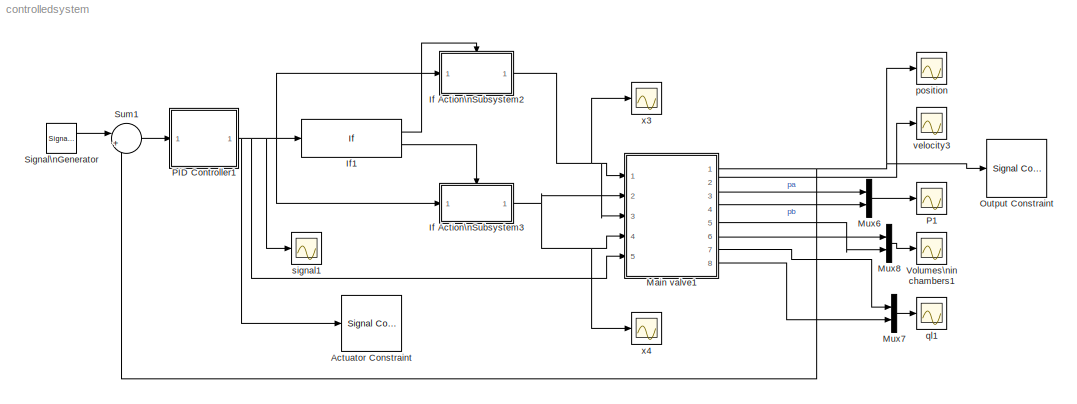
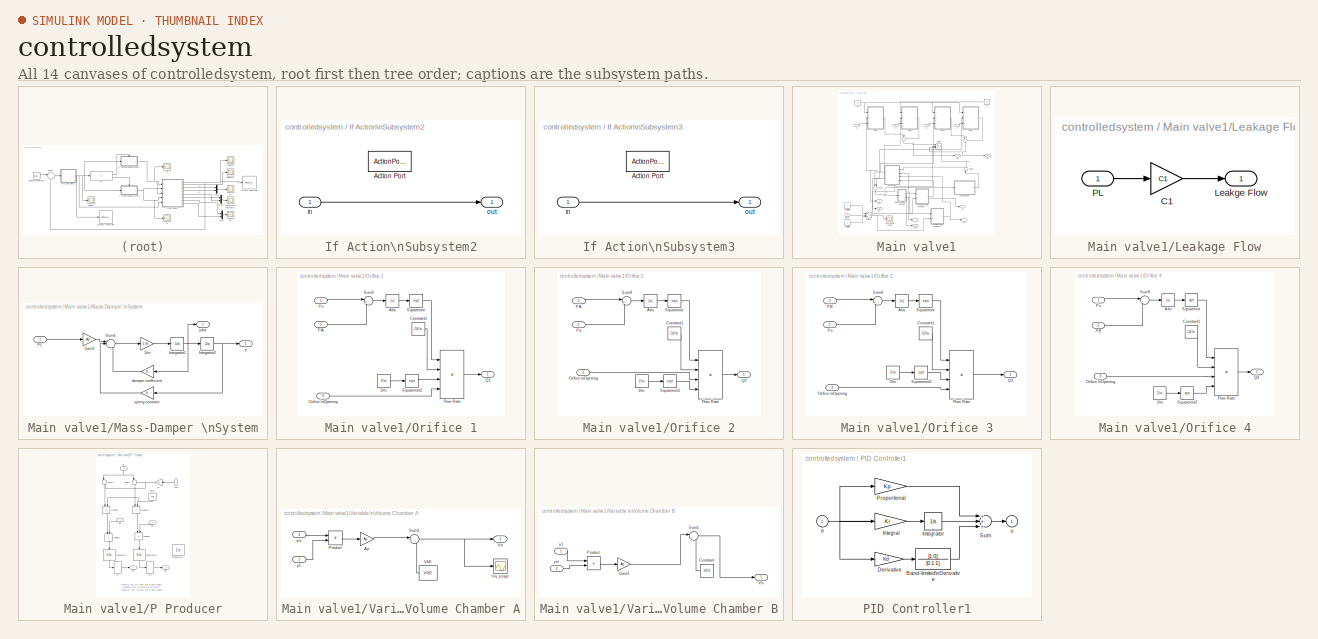
[diagram: thumbnail index - all 14 canvases of the model, root first then tree order]
MODEL controlledsystem
KIND model
CONFIG InitFcn = clear all\nps=1e6;\npe=1;\nAp=5e-4;\nV0=2e-3;\nVdead=10e-6;\nVa0=Vdead;\nVb0=V0-Va0;\nbeta=1.71e9;\nCd=0.65;\nw=25e-3;\nro=825.6;\nm=1;\nk=3e4;\nb=6e2;\nC1=1.5e-12;\nKi=14e-4;\nKd=1.2000e-007;\nKp=40e-2;
BLOCK [Reference] Actuator Constraint  REF=srolib/Signal Constraint  (lib defined in mdl_d992e5ea460a)
  DialogPosition = [0.0578125 0.1943359375 0.403125 0.2890625]
  FunctionWithSeparateData = off
  LogID = SRO_DataLog_1
  Ports = [1]
  RTWMemSecDataConstants = Inherit from model
  RTWMemSecDataInternal = Inherit from model
  RTWMemSecDataParameters = Inherit from model
  RTWMemSecFuncExecute = Inherit from model
  RTWMemSecFuncInitTerm = Inherit from model
  SID = 1
  SaveAs = controlledsystem_optim.mat
  SaveIn = MAT file
  ShowPortLabels = FromPortIcon
  SourceBlock = srolib/Signal Constraint
  SourceProductBaseCode = SO
  SourceProductName = Simulink Design Optimization
  SourceType = Signal Constraint
  SystemSampleTime = -1
BLOCK [SubSystem] If Action\nSubsystem2
  Ports = [1, 1, 0, 0, 0, 0, 0, 1]
  RequestExecContextInheritance = off
  SID = 2
  TreatAsAtomicUnit = on
BLOCK [ActionPort] If Action\nSubsystem2/Action Port
  ActionPortLabel = if { }
  SID = 4
BLOCK [Inport] If Action\nSubsystem2/in
  IconDisplay = Port number
  SID = 3
BLOCK [Outport] If Action\nSubsystem2/out
  IconDisplay = Port number
  SID = 5
BLOCK [SubSystem] If Action\nSubsystem3
  Ports = [1, 1, 0, 0, 0, 0, 0, 1]
  RequestExecContextInheritance = off
  SID = 6
  TreatAsAtomicUnit = on
BLOCK [ActionPort] If Action\nSubsystem3/Action Port
  ActionPortLabel = else { }
  SID = 8
BLOCK [Inport] If Action\nSubsystem3/in
  IconDisplay = Port number
  SID = 7
BLOCK [Outport] If Action\nSubsystem3/out
  IconDisplay = Port number
  SID = 9
BLOCK [If] If1
  Ports = [1, 2]
  SID = 10
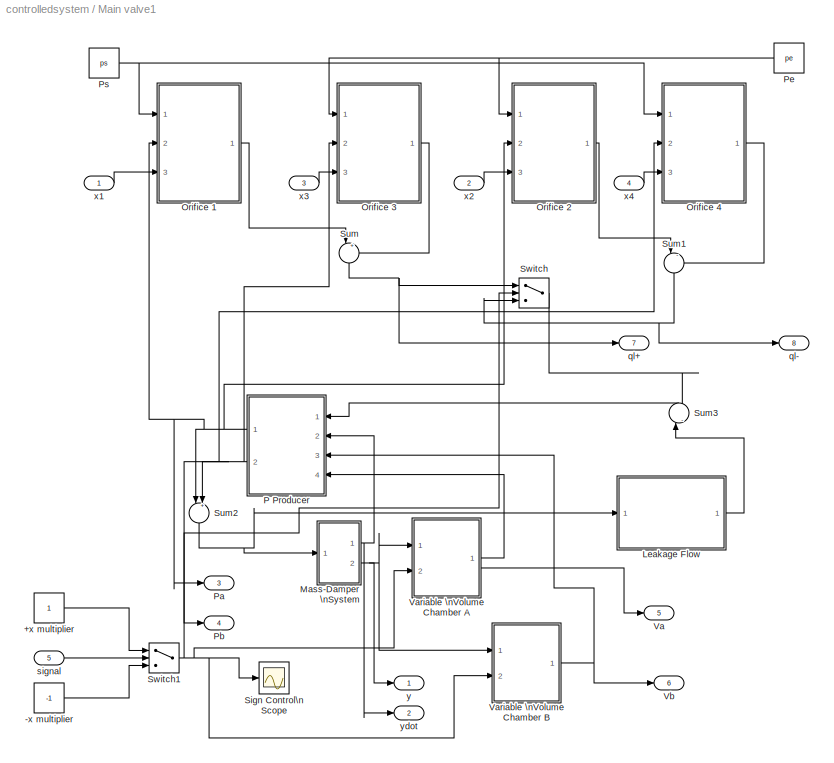
BLOCK [SubSystem] Main valve1
  Ports = [5, 8]
  RequestExecContextInheritance = off
  SID = 11
BLOCK [Constant] Main valve1/+x multiplier
  SID = 17
BLOCK [Constant] Main valve1/-x multiplier
  SID = 18
  Value = -1
BLOCK [SubSystem] Main valve1/Leakage Flow
  Ports = [1, 1]
  RequestExecContextInheritance = off
  SID = 19
BLOCK [Gain] Main valve1/Leakage Flow/C1
  Gain = C1
  OutDataTypeStr = Inherit: Inherit via internal rule
  ParamDataTypeStr = Inherit: Inherit via internal rule
  SID = 21
  SaturateOnIntegerOverflow = off
BLOCK [Outport] Main valve1/Leakage Flow/Leakge Flow
  IconDisplay = Port number
  SID = 22
BLOCK [Inport] Main valve1/Leakage Flow/PL
  IconDisplay = Port number
  SID = 20
BLOCK [SubSystem] Main valve1/Mass-Damper \nSystem
  Ports = [1, 2]
  RequestExecContextInheritance = off
  SID = 23
BLOCK [Gain] Main valve1/Mass-Damper \nSystem/1//m
  Gain = 1/m
  OutDataTypeStr = Inherit: Inherit via internal rule
  ParamDataTypeStr = Inherit: Inherit via internal rule
  SID = 25
  SaturateOnIntegerOverflow = off
BLOCK [Gain] Main valve1/Mass-Damper \nSystem/Gain1
  Gain = Ap
  OutDataTypeStr = Inherit: Inherit via internal rule
  ParamDataTypeStr = Inherit: Inherit via internal rule
  SID = 26
  SaturateOnIntegerOverflow = off
BLOCK [Integrator] Main valve1/Mass-Damper \nSystem/Integrator1
  Ports = [1, 1]
  SID = 27
BLOCK [Integrator] Main valve1/Mass-Damper \nSystem/Integrator2
  Ports = [1, 1]
  SID = 28
BLOCK [Inport] Main valve1/Mass-Damper \nSystem/PL
  IconDisplay = Port number
  SID = 24
BLOCK [Sum] Main valve1/Mass-Damper \nSystem/Sum4
  IconShape = round
  InputSameDT = off
  Inputs = |+--
  OutDataTypeStr = Inherit: Inherit via internal rule
  Ports = [3, 1]
  SID = 29
  SaturateOnIntegerOverflow = off
BLOCK [Gain] Main valve1/Mass-Damper \nSystem/damper coefficient
  Gain = b
  OutDataTypeStr = Inherit: Inherit via internal rule
  ParamDataTypeStr = Inherit: Inherit via internal rule
  SID = 30
  SaturateOnIntegerOverflow = off
BLOCK [Gain] Main valve1/Mass-Damper \nSystem/spring constant
  Gain = k
  OutDataTypeStr = Inherit: Inherit via internal rule
  ParamDataTypeStr = Inherit: Inherit via internal rule
  SID = 31
  SaturateOnIntegerOverflow = off
BLOCK [Outport] Main valve1/Mass-Damper \nSystem/y
  IconDisplay = Port number
  Port = 2
  SID = 33
BLOCK [Outport] Main valve1/Mass-Damper \nSystem/ydot
  IconDisplay = Port number
  SID = 32
BLOCK [SubSystem] Main valve1/Orifice 1
  Ports = [3, 1]
  RequestExecContextInheritance = off
  SID = 34
BLOCK [Constant] Main valve1/Orifice 1/2//ro
  SID = 38
  Value = 2/ro
BLOCK [Abs] Main valve1/Orifice 1/Abs
  SID = 39
  SaturateOnIntegerOverflow = off
BLOCK [Constant] Main valve1/Orifice 1/Constant1
  SID = 40
  Value = Cd*w
BLOCK [Product] Main valve1/Orifice 1/Flow Rate
  InputSameDT = off
  Inputs = 4
  OutDataTypeStr = Inherit: Inherit via internal rule
  Ports = [4, 1]
  SID = 41
  SaturateOnIntegerOverflow = off
BLOCK [Inport] Main valve1/Orifice 1/Orifice \nOpening
  IconDisplay = Port number
  Port = 3
  SID = 37
BLOCK [Inport] Main valve1/Orifice 1/PA
  IconDisplay = Port number
  Port = 2
  SID = 36
BLOCK [Inport] Main valve1/Orifice 1/Ps
  IconDisplay = Port number
  SID = 35
BLOCK [Outport] Main valve1/Orifice 1/Q1
  IconDisplay = Port number
  SID = 45
BLOCK [Math] Main valve1/Orifice 1/Squareroot
  Operator = sqrt
  Ports = [1, 1]
  SID = 42
BLOCK [Math] Main valve1/Orifice 1/Squareroot2
  Operator = sqrt
  Ports = [1, 1]
  SID = 43
BLOCK [Sum] Main valve1/Orifice 1/Sum9
  IconShape = round
  InputSameDT = off
  Inputs = |+-
  OutDataTypeStr = Inherit: Inherit via internal rule
  Ports = [2, 1]
  SID = 44
  SaturateOnIntegerOverflow = off
BLOCK [SubSystem] Main valve1/Orifice 2
  Ports = [3, 1]
  RequestExecContextInheritance = off
  SID = 46
BLOCK [Constant] Main valve1/Orifice 2/2//ro
  SID = 50
  Value = 2/ro
BLOCK [Abs] Main valve1/Orifice 2/Abs
  SID = 51
  SaturateOnIntegerOverflow = off
BLOCK [Constant] Main valve1/Orifice 2/Constant1
  SID = 52
  Value = Cd*w
BLOCK [Product] Main valve1/Orifice 2/Flow Rate
  InputSameDT = off
  Inputs = 4
  OutDataTypeStr = Inherit: Inherit via internal rule
  Ports = [4, 1]
  SID = 53
  SaturateOnIntegerOverflow = off
BLOCK [Inport] Main valve1/Orifice 2/Orifice \nOpening
  IconDisplay = Port number
  Port = 3
  SID = 49
BLOCK [Inport] Main valve1/Orifice 2/PA
  IconDisplay = Port number
  Port = 2
  SID = 48
BLOCK [Inport] Main valve1/Orifice 2/Pe
  IconDisplay = Port number
  SID = 47
BLOCK [Outport] Main valve1/Orifice 2/Q2
  IconDisplay = Port number
  SID = 57
BLOCK [Math] Main valve1/Orifice 2/Squareroot
  Operator = sqrt
  Ports = [1, 1]
  SID = 54
BLOCK [Math] Main valve1/Orifice 2/Squareroot2
  Operator = sqrt
  Ports = [1, 1]
  SID = 55
BLOCK [Sum] Main valve1/Orifice 2/Sum9
  IconShape = round
  InputSameDT = off
  Inputs = |+-
  OutDataTypeStr = Inherit: Inherit via internal rule
  Ports = [2, 1]
  SID = 56
  SaturateOnIntegerOverflow = off
BLOCK [SubSystem] Main valve1/Orifice 3
  Ports = [3, 1]
  RequestExecContextInheritance = off
  SID = 58
BLOCK [Constant] Main valve1/Orifice 3/2//ro
  SID = 62
  Value = 2/ro
BLOCK [Abs] Main valve1/Orifice 3/Abs
  SID = 63
  SaturateOnIntegerOverflow = off
BLOCK [Constant] Main valve1/Orifice 3/Constant1
  SID = 64
  Value = Cd*w
BLOCK [Product] Main valve1/Orifice 3/Flow Rate
  InputSameDT = off
  Inputs = 4
  OutDataTypeStr = Inherit: Inherit via internal rule
  Ports = [4, 1]
  SID = 65
  SaturateOnIntegerOverflow = off
BLOCK [Inport] Main valve1/Orifice 3/Orifice \nOpening
  IconDisplay = Port number
  Port = 3
  SID = 61
BLOCK [Inport] Main valve1/Orifice 3/PB
  IconDisplay = Port number
  Port = 2
  SID = 60
BLOCK [Inport] Main valve1/Orifice 3/Pe
  IconDisplay = Port number
  SID = 59
BLOCK [Outport] Main valve1/Orifice 3/Q3
  IconDisplay = Port number
  SID = 69
BLOCK [Math] Main valve1/Orifice 3/Squareroot
  Operator = sqrt
  Ports = [1, 1]
  SID = 66
BLOCK [Math] Main valve1/Orifice 3/Squareroot2
  Operator = sqrt
  Ports = [1, 1]
  SID = 67
BLOCK [Sum] Main valve1/Orifice 3/Sum9
  IconShape = round
  InputSameDT = off
  Inputs = |+-
  OutDataTypeStr = Inherit: Inherit via internal rule
  Ports = [2, 1]
  SID = 68
  SaturateOnIntegerOverflow = off
BLOCK [SubSystem] Main valve1/Orifice 4
  Ports = [3, 1]
  RequestExecContextInheritance = off
  SID = 70
BLOCK [Constant] Main valve1/Orifice 4/2//ro
  SID = 74
  Value = 2/ro
BLOCK [Abs] Main valve1/Orifice 4/Abs
  SID = 75
  SaturateOnIntegerOverflow = off
BLOCK [Constant] Main valve1/Orifice 4/Constant1
  SID = 76
  Value = Cd*w
BLOCK [Product] Main valve1/Orifice 4/Flow Rate
  InputSameDT = off
  Inputs = 4
  OutDataTypeStr = Inherit: Inherit via internal rule
  Ports = [4, 1]
  SID = 77
  SaturateOnIntegerOverflow = off
BLOCK [Inport] Main valve1/Orifice 4/Orifice \nOpening
  IconDisplay = Port number
  Port = 3
  SID = 73
BLOCK [Inport] Main valve1/Orifice 4/PB
  IconDisplay = Port number
  Port = 2
  SID = 72
BLOCK [Inport] Main valve1/Orifice 4/Ps
  IconDisplay = Port number
  SID = 71
BLOCK [Outport] Main valve1/Orifice 4/Q4
  IconDisplay = Port number
  SID = 81
BLOCK [Math] Main valve1/Orifice 4/Squareroot
  Operator = sqrt
  Ports = [1, 1]
  SID = 78
BLOCK [Math] Main valve1/Orifice 4/Squareroot2
  Operator = sqrt
  Ports = [1, 1]
  SID = 79
BLOCK [Sum] Main valve1/Orifice 4/Sum9
  IconShape = round
  InputSameDT = off
  Inputs = |+-
  OutDataTypeStr = Inherit: Inherit via internal rule
  Ports = [2, 1]
  SID = 80
  SaturateOnIntegerOverflow = off
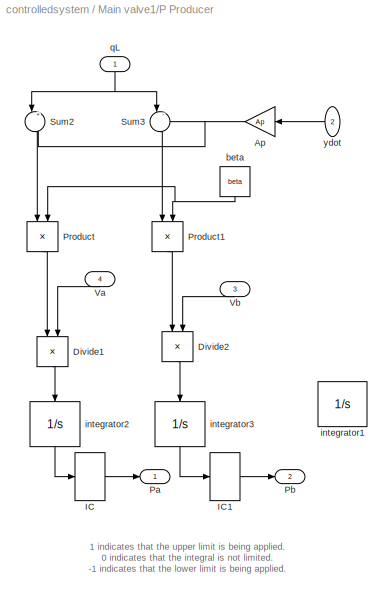
BLOCK [SubSystem] Main valve1/P Producer
  Ports = [4, 2]
  RequestExecContextInheritance = off
  SID = 82
BLOCK [Gain] Main valve1/P Producer/Ap
  Gain = Ap
  OutDataTypeStr = Inherit: Inherit via internal rule
  ParamDataTypeStr = Inherit: Inherit via internal rule
  SID = 87
  SaturateOnIntegerOverflow = off
BLOCK [Product] Main valve1/P Producer/Divide1
  InputSameDT = off
  Inputs = */
  OutDataTypeStr = Inherit: Inherit via internal rule
  Ports = [2, 1]
  RndMeth = Floor
  SID = 88
  SaturateOnIntegerOverflow = off
BLOCK [Product] Main valve1/P Producer/Divide2
  InputSameDT = off
  Inputs = */
  OutDataTypeStr = Inherit: Inherit via internal rule
  Ports = [2, 1]
  RndMeth = Floor
  SID = 89
  SaturateOnIntegerOverflow = off
BLOCK [InitialCondition] Main valve1/P Producer/IC
  SID = 90
  Value = ps/2
BLOCK [InitialCondition] Main valve1/P Producer/IC1
  SID = 91
  Value = ps/2
BLOCK [Outport] Main valve1/P Producer/Pa
  IconDisplay = Port number
  SID = 100
BLOCK [Outport] Main valve1/P Producer/Pb
  IconDisplay = Port number
  Port = 2
  SID = 101
BLOCK [Product] Main valve1/P Producer/Product
  InputSameDT = off
  OutDataTypeStr = Inherit: Inherit via internal rule
  Ports = [2, 1]
  SID = 92
  SaturateOnIntegerOverflow = off
BLOCK [Product] Main valve1/P Producer/Product1
  InputSameDT = off
  OutDataTypeStr = Inherit: Inherit via internal rule
  Ports = [2, 1]
  SID = 93
  SaturateOnIntegerOverflow = off
BLOCK [Sum] Main valve1/P Producer/Sum2
  IconShape = round
  InputSameDT = off
  Inputs = |+-
  OutDataTypeStr = Inherit: Inherit via internal rule
  Ports = [2, 1]
  SID = 94
  SaturateOnIntegerOverflow = off
BLOCK [Sum] Main valve1/P Producer/Sum3
  IconShape = round
  InputSameDT = off
  Inputs = |-+
  OutDataTypeStr = Inherit: Inherit via internal rule
  Ports = [2, 1]
  SID = 95
  SaturateOnIntegerOverflow = off
BLOCK [Inport] Main valve1/P Producer/Va
  IconDisplay = Port number
  Port = 4
  SID = 86
BLOCK [Inport] Main valve1/P Producer/Vb
  IconDisplay = Port number
  Port = 3
  SID = 85
BLOCK [Constant] Main valve1/P Producer/beta
  SID = 96
  Value = beta
BLOCK [Integrator] Main valve1/P Producer/integrator1
  AbsoluteTolerance = ps
  ExternalReset = either
  LimitOutput = on
  LowerSaturationLimit = -1e-5
  Ports = [2, 2]
  SID = 97
  ShowSaturationPort = on
  UpperSaturationLimit = ps
BLOCK [Integrator] Main valve1/P Producer/integrator2
  LowerSaturationLimit = -1e-5
  Ports = [1, 1]
  SID = 98
  UpperSaturationLimit = ps
BLOCK [Integrator] Main valve1/P Producer/integrator3
  LowerSaturationLimit = -1e-5
  Ports = [1, 1]
  SID = 99
  UpperSaturationLimit = ps
BLOCK [Inport] Main valve1/P Producer/qL
  IconDisplay = Port number
  SID = 83
BLOCK [Inport] Main valve1/P Producer/ydot
  IconDisplay = Port number
  Port = 2
  SID = 84
BLOCK [Outport] Main valve1/Pa
  IconDisplay = Port number
  Port = 3
  SID = 131
BLOCK [Outport] Main valve1/Pb
  IconDisplay = Port number
  Port = 4
  SID = 132
BLOCK [Constant] Main valve1/Pe
  SID = 103
  Value = pe
BLOCK [Constant] Main valve1/Ps
  SID = 104
  Value = ps
BLOCK [Scope] Main valve1/Sign Control\n Scope
  Floating = off
  NumInputPorts = 1
  Ports = [1]
  SID = 105
  ScopeSpecificationString = C++SS(StrPVP('Location','[625, 349, 949, 588]'),StrPVP('Open','off'),MxPVP('AxesTitles',54,'struct(''axes1'',''%<SignalLabel>'')'),StrPVP('SaveName','ScopeData9'),StrPVP('DataFormat','StructureWithTime'),StrPVP('LimitDataPoints','off'),StrPVP('BlockParamSampleTime','0'),StrPVP('Decimation','1'),StrPVP('BlockParamSampleInput','off'))
BLOCK [Sum] Main valve1/Sum
  IconShape = round
  InputSameDT = off
  Inputs = |+-
  OutDataTypeStr = Inherit: Inherit via internal rule
  Ports = [2, 1]
  SID = 106
  SaturateOnIntegerOverflow = off
BLOCK [Sum] Main valve1/Sum1
  IconShape = round
  InputSameDT = off
  Inputs = |-+
  OutDataTypeStr = Inherit: Inherit via internal rule
  Ports = [2, 1]
  SID = 107
  SaturateOnIntegerOverflow = off
BLOCK [Sum] Main valve1/Sum2
  IconShape = round
  InputSameDT = off
  Inputs = |+-
  OutDataTypeStr = Inherit: Inherit via internal rule
  Ports = [2, 1]
  SID = 108
  SaturateOnIntegerOverflow = off
BLOCK [Sum] Main valve1/Sum3
  IconShape = round
  InputSameDT = off
  Inputs = |-+
  OutDataTypeStr = Inherit: Inherit via internal rule
  Ports = [2, 1]
  SID = 109
  SaturateOnIntegerOverflow = off
BLOCK [Switch] Main valve1/Switch
  InputSameDT = off
  SID = 110
  SaturateOnIntegerOverflow = off
BLOCK [Switch] Main valve1/Switch1
  InputSameDT = off
  SID = 111
  SaturateOnIntegerOverflow = off
BLOCK [Outport] Main valve1/Va
  IconDisplay = Port number
  Port = 5
  SID = 133
BLOCK [SubSystem] Main valve1/Variable \nVolume Chamber A
  Ports = [2, 1]
  RequestExecContextInheritance = off
  SID = 112
BLOCK [Gain] Main valve1/Variable \nVolume Chamber A/Ap
  Gain = Ap
  OutDataTypeStr = Inherit: Inherit via internal rule
  ParamDataTypeStr = Inherit: Inherit via internal rule
  SID = 115
  SaturateOnIntegerOverflow = off
BLOCK [Product] Main valve1/Variable \nVolume Chamber A/Product
  InputSameDT = off
  OutDataTypeStr = Inherit: Inherit via internal rule
  Ports = [2, 1]
  SID = 116
  SaturateOnIntegerOverflow = off
BLOCK [Sum] Main valve1/Variable \nVolume Chamber A/Sum1
  IconShape = round
  InputSameDT = off
  Inputs = |++
  OutDataTypeStr = Inherit: Inherit via internal rule
  Ports = [2, 1]
  SID = 117
  SaturateOnIntegerOverflow = off
BLOCK [Outport] Main valve1/Variable \nVolume Chamber A/Va
  IconDisplay = Port number
  SID = 120
BLOCK [Scope] Main valve1/Variable \nVolume Chamber A/Va_scope
  Floating = off
  NumInputPorts = 1
  Ports = [1]
  SID = 118
  ScopeSpecificationString = C++SS(StrPVP('Location','[188, 390, 512, 629]'),StrPVP('Open','off'),MxPVP('AxesTitles',54,'struct(''axes1'',''%<SignalLabel>'')'),StrPVP('SaveName','ScopeData13'),StrPVP('DataFormat','StructureWithTime'),StrPVP('LimitDataPoints','off'),StrPVP('BlockParamSampleTime','0'),StrPVP('Decimation','1'),StrPVP('BlockParamSampleInput','off'))
BLOCK [Constant] Main valve1/Variable \nVolume Chamber A/Vb0
  SID = 119
  Value = V0/2
BLOCK [Inport] Main valve1/Variable \nVolume Chamber A/y1
  IconDisplay = Port number
  SID = 113
BLOCK [Inport] Main valve1/Variable \nVolume Chamber A/yor
  IconDisplay = Port number
  Port = 2
  SID = 114
BLOCK [SubSystem] Main valve1/Variable \nVolume Chamber B
  Ports = [2, 1]
  RequestExecContextInheritance = off
  SID = 121
BLOCK [Constant] Main valve1/Variable \nVolume Chamber B/Constant
  SID = 124
  Value = V0/2
BLOCK [Gain] Main valve1/Variable \nVolume Chamber B/Gain3
  Gain = Ap
  OutDataTypeStr = Inherit: Inherit via internal rule
  ParamDataTypeStr = Inherit: Inherit via internal rule
  SID = 125
  SaturateOnIntegerOverflow = off
BLOCK [Product] Main valve1/Variable \nVolume Chamber B/Product
  InputSameDT = off
  OutDataTypeStr = Inherit: Inherit via internal rule
  Ports = [2, 1]
  SID = 126
  SaturateOnIntegerOverflow = off
BLOCK [Sum] Main valve1/Variable \nVolume Chamber B/Sum1
  IconShape = round
  InputSameDT = off
  Inputs = |-+
  OutDataTypeStr = Inherit: Inherit via internal rule
  Ports = [2, 1]
  SID = 127
  SaturateOnIntegerOverflow = off
BLOCK [Outport] Main valve1/Variable \nVolume Chamber B/Vb
  IconDisplay = Port number
  SID = 128
BLOCK [Inport] Main valve1/Variable \nVolume Chamber B/y1
  IconDisplay = Port number
  SID = 122
BLOCK [Inport] Main valve1/Variable \nVolume Chamber B/yor
  IconDisplay = Port number
  Port = 2
  SID = 123
BLOCK [Outport] Main valve1/Vb
  IconDisplay = Port number
  Port = 6
  SID = 134
BLOCK [Outport] Main valve1/ql+
  IconDisplay = Port number
  Port = 7
  SID = 135
BLOCK [Outport] Main valve1/ql-
  IconDisplay = Port number
  Port = 8
  SID = 136
BLOCK [Inport] Main valve1/signal
  IconDisplay = Port number
  Port = 5
  SID = 16
BLOCK [Inport] Main valve1/x1
  IconDisplay = Port number
  SID = 12
BLOCK [Inport] Main valve1/x2
  IconDisplay = Port number
  Port = 2
  SID = 13
BLOCK [Inport] Main valve1/x3
  IconDisplay = Port number
  Port = 3
  SID = 14
BLOCK [Inport] Main valve1/x4
  IconDisplay = Port number
  Port = 4
  SID = 15
BLOCK [Outport] Main valve1/y
  IconDisplay = Port number
  SID = 129
BLOCK [Outport] Main valve1/ydot
  IconDisplay = Port number
  Port = 2
  SID = 130
BLOCK [Mux] Mux6
  DisplayOption = bar
  Inputs = 2
  Ports = [2, 1]
  SID = 137
BLOCK [Mux] Mux7
  DisplayOption = bar
  Inputs = 2
  Ports = [2, 1]
  SID = 138
BLOCK [Mux] Mux8
  DisplayOption = bar
  Inputs = 2
  Ports = [2, 1]
  SID = 139
BLOCK [Reference] Output Constraint  REF=srolib/Signal Constraint  (lib defined in mdl_d992e5ea460a)
  DialogPosition = [0.190625 0.119140625 0.3390625 0.259765625]
  FunctionWithSeparateData = off
  LogID = SRO_DataLog_2
  Ports = [1]
  RTWMemSecDataConstants = Inherit from model
  RTWMemSecDataInternal = Inherit from model
  RTWMemSecDataParameters = Inherit from model
  RTWMemSecFuncExecute = Inherit from model
  RTWMemSecFuncInitTerm = Inherit from model
  SID = 140
  SaveAs = controlledsystem_optim.mat
  SaveIn = MAT file
  ShowPortLabels = FromPortIcon
  SourceBlock = srolib/Signal Constraint
  SourceProductBaseCode = SO
  SourceProductName = Simulink Design Optimization
  SourceType = Signal Constraint
  SystemSampleTime = -1
BLOCK [Scope] P1
  Floating = off
  NumInputPorts = 1
  Ports = [1]
  SID = 141
  ScopeSpecificationString = C++SS(StrPVP('Location','[220, 123, 878, 424]'),StrPVP('Open','on'),StrPVP('TickLabels','on'),MxPVP('AxesTitles',54,'struct(''axes1'',''%<SignalLabel>'')'),StrPVP('YMin','250000'),StrPVP('YMax','1e+006'),StrPVP('DataFormat','StructureWithTime'),StrPVP('LimitDataPoints','off'),StrPVP('BlockParamSampleTime','0'),StrPVP('Decimation','1'),StrPVP('BlockParamSampleInput','off'))
BLOCK [SubSystem] PID Controller1
  Ports = [1, 1]
  RequestExecContextInheritance = off
  SID = 142
BLOCK [TransferFcn] PID Controller1/Band-limited\nDerivative
  Denominator = [0.1 1]
  Numerator = [1 0]
  SID = 144
BLOCK [Gain] PID Controller1/Derivative
  Gain = Kd
  SID = 145
BLOCK [Gain] PID Controller1/Integral
  Gain = Ki
  SID = 146
BLOCK [Integrator] PID Controller1/Integrator
  Ports = [1, 1]
  SID = 147
BLOCK [Gain] PID Controller1/Proportional
  Gain = Kp
  SID = 148
BLOCK [Sum] PID Controller1/Sum
  Inputs = +++
  Ports = [3, 1]
  SID = 149
BLOCK [Inport] PID Controller1/e
  IconDisplay = Port number
  SID = 143
BLOCK [Outport] PID Controller1/u
  IconDisplay = Port number
  InitialOutput = 0
  SID = 150
BLOCK [SignalGenerator] Signal\nGenerator
  Amplitude = 1e-3
  Frequency = 5*pi
  Ports = [0, 1]
  SID = 151
  Units = rad/sec
  WaveForm = square
BLOCK [Sum] Sum1
  IconShape = round
  InputSameDT = off
  Inputs = |+-
  OutDataTypeStr = Inherit: Inherit via internal rule
  Ports = [2, 1]
  SID = 152
BLOCK [Scope] Volumes\nin chambers1
  Floating = off
  NumInputPorts = 1
  Ports = [1]
  SID = 153
  ScopeSpecificationString = C++SS(StrPVP('Location','[238, 218, 842, 663]'),StrPVP('Open','off'),MxPVP('AxesTitles',54,'struct(''axes1'',''%<SignalLabel>'')'),StrPVP('YMin','-8.13152e-020'),StrPVP('YMax','0.002'),StrPVP('SaveName','ScopeData1'),StrPVP('DataFormat','StructureWithTime'),StrPVP('LimitDataPoints','off'),StrPVP('BlockParamSampleTime','0'),StrPVP('Decimation','1'),StrPVP('BlockParamSampleInput','off'))
BLOCK [Scope] position
  Floating = off
  NumInputPorts = 1
  Ports = [1]
  SID = 154
  ScopeSpecificationString = C++SS(StrPVP('Location','[406, 427, 1047, 894]'),StrPVP('Open','off'),MxPVP('AxesTitles',54,'struct(''axes1'',''%<SignalLabel>'')'),StrPVP('YMin','-0.0015'),StrPVP('YMax','0.0015'),StrPVP('SaveName','ScopeData7'),StrPVP('DataFormat','StructureWithTime'),StrPVP('LimitDataPoints','off'),StrPVP('BlockParamSampleTime','0'),StrPVP('Decimation','1'),StrPVP('BlockParamSampleInput','off'))
BLOCK [Scope] ql1
  Floating = off
  NumInputPorts = 1
  Ports = [1]
  SID = 155
  ScopeSpecificationString = C++SS(StrPVP('Location','[1, 45, 1281, 995]'),StrPVP('Open','off'),MxPVP('AxesTitles',54,'struct(''axes1'',''%<SignalLabel>'')'),StrPVP('YMin','-0.06'),StrPVP('YMax','0.1'),StrPVP('SaveName','ScopeData2'),StrPVP('DataFormat','StructureWithTime'),StrPVP('LimitDataPoints','off'),StrPVP('BlockParamSampleTime','0'),StrPVP('Decimation','1'),StrPVP('BlockParamSampleInput','off'))
BLOCK [Scope] signal1
  Floating = off
  NumInputPorts = 1
  Ports = [1]
  SID = 156
  ScopeSpecificationString = C++SS(StrPVP('Location','[1, 45, 1281, 995]'),StrPVP('Open','off'),MxPVP('AxesTitles',54,'struct(''axes1'',''%<SignalLabel>'')'),StrPVP('YMin','1e-006'),StrPVP('YMax','1.4e-005'),StrPVP('SaveName','ScopeData3'),StrPVP('DataFormat','StructureWithTime'),StrPVP('LimitDataPoints','off'),StrPVP('BlockParamSampleTime','0'),StrPVP('Decimation','1'),StrPVP('BlockParamSampleInput','off'))
BLOCK [Scope] velocity3
  Floating = off
  NumInputPorts = 1
  Ports = [1]
  SID = 157
  ScopeSpecificationString = C++SS(StrPVP('Location','[125, 163, 766, 630]'),StrPVP('Open','off'),MxPVP('AxesTitles',54,'struct(''axes1'',''%<SignalLabel>'')'),StrPVP('YMin','-0.7'),StrPVP('YMax','0.4'),StrPVP('SaveName','ScopeData4'),StrPVP('DataFormat','StructureWithTime'),StrPVP('LimitDataPoints','off'),StrPVP('BlockParamSampleTime','0'),StrPVP('Decimation','1'),StrPVP('BlockParamSampleInput','off'))
BLOCK [Scope] x3
  Floating = off
  NumInputPorts = 1
  Ports = [1]
  SID = 158
  ScopeSpecificationString = C++SS(StrPVP('Location','[425, 463, 749, 702]'),StrPVP('Open','off'),MxPVP('AxesTitles',54,'struct(''axes1'',''%<SignalLabel>'')'),StrPVP('YMin','1e-006'),StrPVP('YMax','1.4e-005'),StrPVP('SaveName','ScopeData5'),StrPVP('DataFormat','StructureWithTime'),StrPVP('LimitDataPoints','off'),StrPVP('BlockParamSampleTime','0'),StrPVP('Decimation','1'),StrPVP('BlockParamSampleInput','off'))
BLOCK [Scope] x4
  Floating = off
  NumInputPorts = 1
  Ports = [1]
  SID = 159
  ScopeSpecificationString = C++SS(StrPVP('Location','[85, 410, 409, 649]'),StrPVP('Open','off'),MxPVP('AxesTitles',54,'struct(''axes1'',''%<SignalLabel>'')'),StrPVP('YMin','1e-006'),StrPVP('YMax','1.4e-005'),StrPVP('SaveName','ScopeData6'),StrPVP('DataFormat','StructureWithTime'),StrPVP('LimitDataPoints','off'),StrPVP('BlockParamSampleTime','0'),StrPVP('Decimation','1'),StrPVP('BlockParamSampleInput','off'))
ANNOTATION Main valve1/P Producer: 1 indicates that the upper limit is being applied.\n0 indicates that the integral is not limited.\n-1 indicates that the lower limit is being applied.
LINE If Action\nSubsystem2/in:1 -> If Action\nSubsystem2/out:1
NET If Action\nSubsystem2:1 -> Main valve1:1, Main valve1:3, x3:1
LINE If Action\nSubsystem3/in:1 -> If Action\nSubsystem3/out:1
NET If Action\nSubsystem3:1 -> Main valve1:2, Main valve1:4, x4:1
LINE If1:1 -> If Action\nSubsystem2:ifaction
LINE If1:2 -> If Action\nSubsystem3:ifaction
LINE Main valve1/+x multiplier:1 -> Main valve1/Switch1:1
LINE Main valve1/-x multiplier:1 -> Main valve1/Switch1:3
LINE Main valve1/Leakage Flow/C1:1 -> Main valve1/Leakage Flow/Leakge Flow:1
LINE Main valve1/Leakage Flow/PL:1 -> Main valve1/Leakage Flow/C1:1
LINE Main valve1/Leakage Flow:1 -> Main valve1/Sum3:1
LINE Main valve1/Mass-Damper \nSystem/1//m:1 -> Main valve1/Mass-Damper \nSystem/Integrator1:1
LINE Main valve1/Mass-Damper \nSystem/Gain1:1 -> Main valve1/Mass-Damper \nSystem/Sum4:1
NET Main valve1/Mass-Damper \nSystem/Integrator1:1 -> Main valve1/Mass-Damper \nSystem/Integrator2:1, Main valve1/Mass-Damper \nSystem/damper coefficient:1, Main valve1/Mass-Damper \nSystem/ydot:1
NET Main valve1/Mass-Damper \nSystem/Integrator2:1 -> Main valve1/Mass-Damper \nSystem/spring constant:1, Main valve1/Mass-Damper \nSystem/y:1
LINE Main valve1/Mass-Damper \nSystem/PL:1 -> Main valve1/Mass-Damper \nSystem/Gain1:1
LINE Main valve1/Mass-Damper \nSystem/Sum4:1 -> Main valve1/Mass-Damper \nSystem/1//m:1
LINE Main valve1/Mass-Damper \nSystem/damper coefficient:1 -> Main valve1/Mass-Damper \nSystem/Sum4:3
LINE Main valve1/Mass-Damper \nSystem/spring constant:1 -> Main valve1/Mass-Damper \nSystem/Sum4:2
NET Main valve1/Mass-Damper \nSystem:1 -> Main valve1/P Producer:2, Main valve1/ydot:1
NET Main valve1/Mass-Damper \nSystem:2 -> Main valve1/Variable \nVolume Chamber A:1, Main valve1/Variable \nVolume Chamber B:1, Main valve1/y:1
LINE Main valve1/Orifice 1/2//ro:1 -> Main valve1/Orifice 1/Squareroot2:1
LINE Main valve1/Orifice 1/Abs:1 -> Main valve1/Orifice 1/Squareroot:1
LINE Main valve1/Orifice 1/Constant1:1 -> Main valve1/Orifice 1/Flow Rate:2
LINE Main valve1/Orifice 1/Flow Rate:1 -> Main valve1/Orifice 1/Q1:1
LINE Main valve1/Orifice 1/Orifice \nOpening:1 -> Main valve1/Orifice 1/Flow Rate:4
LINE Main valve1/Orifice 1/PA:1 -> Main valve1/Orifice 1/Sum9:2
LINE Main valve1/Orifice 1/Ps:1 -> Main valve1/Orifice 1/Sum9:1
LINE Main valve1/Orifice 1/Squareroot2:1 -> Main valve1/Orifice 1/Flow Rate:3
LINE Main valve1/Orifice 1/Squareroot:1 -> Main valve1/Orifice 1/Flow Rate:1
LINE Main valve1/Orifice 1/Sum9:1 -> Main valve1/Orifice 1/Abs:1
LINE Main valve1/Orifice 1:1 -> Main valve1/Sum:1
LINE Main valve1/Orifice 2/2//ro:1 -> Main valve1/Orifice 2/Squareroot2:1
LINE Main valve1/Orifice 2/Abs:1 -> Main valve1/Orifice 2/Squareroot:1
LINE Main valve1/Orifice 2/Constant1:1 -> Main valve1/Orifice 2/Flow Rate:2
LINE Main valve1/Orifice 2/Flow Rate:1 -> Main valve1/Orifice 2/Q2:1
LINE Main valve1/Orifice 2/Orifice \nOpening:1 -> Main valve1/Orifice 2/Flow Rate:3
LINE Main valve1/Orifice 2/PA:1 -> Main valve1/Orifice 2/Sum9:1
LINE Main valve1/Orifice 2/Pe:1 -> Main valve1/Orifice 2/Sum9:2
LINE Main valve1/Orifice 2/Squareroot2:1 -> Main valve1/Orifice 2/Flow Rate:4
LINE Main valve1/Orifice 2/Squareroot:1 -> Main valve1/Orifice 2/Flow Rate:1
LINE Main valve1/Orifice 2/Sum9:1 -> Main valve1/Orifice 2/Abs:1
LINE Main valve1/Orifice 2:1 -> Main valve1/Sum1:1
LINE Main valve1/Orifice 3/2//ro:1 -> Main valve1/Orifice 3/Squareroot2:1
LINE Main valve1/Orifice 3/Abs:1 -> Main valve1/Orifice 3/Squareroot:1
LINE Main valve1/Orifice 3/Constant1:1 -> Main valve1/Orifice 3/Flow Rate:2
LINE Main valve1/Orifice 3/Flow Rate:1 -> Main valve1/Orifice 3/Q3:1
LINE Main valve1/Orifice 3/Orifice \nOpening:1 -> Main valve1/Orifice 3/Flow Rate:4
LINE Main valve1/Orifice 3/PB:1 -> Main valve1/Orifice 3/Sum9:1
LINE Main valve1/Orifice 3/Pe:1 -> Main valve1/Orifice 3/Sum9:2
LINE Main valve1/Orifice 3/Squareroot2:1 -> Main valve1/Orifice 3/Flow Rate:3
LINE Main valve1/Orifice 3/Squareroot:1 -> Main valve1/Orifice 3/Flow Rate:1
LINE Main valve1/Orifice 3/Sum9:1 -> Main valve1/Orifice 3/Abs:1
LINE Main valve1/Orifice 3:1 -> Main valve1/Sum:2
LINE Main valve1/Orifice 4/2//ro:1 -> Main valve1/Orifice 4/Squareroot2:1
LINE Main valve1/Orifice 4/Abs:1 -> Main valve1/Orifice 4/Squareroot:1
LINE Main valve1/Orifice 4/Constant1:1 -> Main valve1/Orifice 4/Flow Rate:2
LINE Main valve1/Orifice 4/Flow Rate:1 -> Main valve1/Orifice 4/Q4:1
LINE Main valve1/Orifice 4/Orifice \nOpening:1 -> Main valve1/Orifice 4/Flow Rate:3
LINE Main valve1/Orifice 4/PB:1 -> Main valve1/Orifice 4/Sum9:2
LINE Main valve1/Orifice 4/Ps:1 -> Main valve1/Orifice 4/Sum9:1
LINE Main valve1/Orifice 4/Squareroot2:1 -> Main valve1/Orifice 4/Flow Rate:4
LINE Main valve1/Orifice 4/Squareroot:1 -> Main valve1/Orifice 4/Flow Rate:1
LINE Main valve1/Orifice 4/Sum9:1 -> Main valve1/Orifice 4/Abs:1
LINE Main valve1/Orifice 4:1 -> Main valve1/Sum1:2
NET Main valve1/P Producer/Ap:1 -> Main valve1/P Producer/Sum2:2, Main valve1/P Producer/Sum3:2
LINE Main valve1/P Producer/Divide1:1 -> Main valve1/P Producer/integrator2:1
LINE Main valve1/P Producer/Divide2:1 -> Main valve1/P Producer/integrator3:1
LINE Main valve1/P Producer/IC1:1 -> Main valve1/P Producer/Pb:1
LINE Main valve1/P Producer/IC:1 -> Main valve1/P Producer/Pa:1
LINE Main valve1/P Producer/Product1:1 -> Main valve1/P Producer/Divide2:1
LINE Main valve1/P Producer/Product:1 -> Main valve1/P Producer/Divide1:1
LINE Main valve1/P Producer/Sum2:1 -> Main valve1/P Producer/Product:1
LINE Main valve1/P Producer/Sum3:1 -> Main valve1/P Producer/Product1:1
LINE Main valve1/P Producer/Va:1 -> Main valve1/P Producer/Divide1:2
LINE Main valve1/P Producer/Vb:1 -> Main valve1/P Producer/Divide2:2
NET Main valve1/P Producer/beta:1 -> Main valve1/P Producer/Product1:2, Main valve1/P Producer/Product:2
LINE Main valve1/P Producer/integrator2:1 -> Main valve1/P Producer/IC:1
LINE Main valve1/P Producer/integrator3:1 -> Main valve1/P Producer/IC1:1
NET Main valve1/P Producer/qL:1 -> Main valve1/P Producer/Sum2:1, Main valve1/P Producer/Sum3:1
LINE Main valve1/P Producer/ydot:1 -> Main valve1/P Producer/Ap:1
NET Main valve1/P Producer:1 -> Main valve1/Orifice 1:2, Main valve1/Orifice 2:2, Main valve1/Pa:1, Main valve1/Sum2:1
NET Main valve1/P Producer:2 -> Main valve1/Orifice 3:2, Main valve1/Orifice 4:2, Main valve1/Pb:1, Main valve1/Sum2:2
NET Main valve1/Pe:1 -> Main valve1/Orifice 2:1, Main valve1/Orifice 3:1
NET Main valve1/Ps:1 -> Main valve1/Orifice 1:1, Main valve1/Orifice 4:1
NET Main valve1/Sum1:1 -> Main valve1/Switch:3, Main valve1/ql-:1
NET Main valve1/Sum2:1 -> Main valve1/Leakage Flow:1, Main valve1/Mass-Damper \nSystem:1
LINE Main valve1/Sum3:1 -> Main valve1/P Producer:1
NET Main valve1/Sum:1 -> Main valve1/Switch:1, Main valve1/ql+:1
NET Main valve1/Switch1:1 -> Main valve1/Sign Control\n Scope:1, Main valve1/Switch:2, Main valve1/Variable \nVolume Chamber A:2, Main valve1/Variable \nVolume Chamber B:2
LINE Main valve1/Switch:1 -> Main valve1/Sum3:2
LINE Main valve1/Variable \nVolume Chamber A/Ap:1 -> Main valve1/Variable \nVolume Chamber A/Sum1:1
LINE Main valve1/Variable \nVolume Chamber A/Product:1 -> Main valve1/Variable \nVolume Chamber A/Ap:1
NET Main valve1/Variable \nVolume Chamber A/Sum1:1 -> Main valve1/Variable \nVolume Chamber A/Va:1, Main valve1/Variable \nVolume Chamber A/Va_scope:1
LINE Main valve1/Variable \nVolume Chamber A/Vb0:1 -> Main valve1/Variable \nVolume Chamber A/Sum1:2
LINE Main valve1/Variable \nVolume Chamber A/y1:1 -> Main valve1/Variable \nVolume Chamber A/Product:2
LINE Main valve1/Variable \nVolume Chamber A/yor:1 -> Main valve1/Variable \nVolume Chamber A/Product:1
NET Main valve1/Variable \nVolume Chamber A:1 -> Main valve1/P Producer:4, Main valve1/Va:1
LINE Main valve1/Variable \nVolume Chamber B/Constant:1 -> Main valve1/Variable \nVolume Chamber B/Sum1:2
LINE Main valve1/Variable \nVolume Chamber B/Gain3:1 -> Main valve1/Variable \nVolume Chamber B/Sum1:1
LINE Main valve1/Variable \nVolume Chamber B/Product:1 -> Main valve1/Variable \nVolume Chamber B/Gain3:1
LINE Main valve1/Variable \nVolume Chamber B/Sum1:1 -> Main valve1/Variable \nVolume Chamber B/Vb:1
LINE Main valve1/Variable \nVolume Chamber B/y1:1 -> Main valve1/Variable \nVolume Chamber B/Product:1
LINE Main valve1/Variable \nVolume Chamber B/yor:1 -> Main valve1/Variable \nVolume Chamber B/Product:2
NET Main valve1/Variable \nVolume Chamber B:1 -> Main valve1/P Producer:3, Main valve1/Vb:1
LINE Main valve1/signal:1 -> Main valve1/Switch1:2
LINE Main valve1/x1:1 -> Main valve1/Orifice 1:3
LINE Main valve1/x2:1 -> Main valve1/Orifice 2:3
LINE Main valve1/x3:1 -> Main valve1/Orifice 3:3
LINE Main valve1/x4:1 -> Main valve1/Orifice 4:3
NET Main valve1:1 -> Output Constraint:1, Sum1:2, position:1
LINE Main valve1:2 -> velocity3:1
LINE Main valve1:3 -> Mux6:1
LINE Main valve1:4 -> Mux6:2
LINE Main valve1:5 -> Mux8:2
LINE Main valve1:6 -> Mux8:1
LINE Main valve1:7 -> Mux7:1
LINE Main valve1:8 -> Mux7:2
LINE Mux6:1 -> P1:1
LINE Mux7:1 -> ql1:1
LINE Mux8:1 -> Volumes\nin chambers1:1
LINE PID Controller1/Band-limited\nDerivative:1 -> PID Controller1/Sum:3
LINE PID Controller1/Derivative:1 -> PID Controller1/Band-limited\nDerivative:1
LINE PID Controller1/Integral:1 -> PID Controller1/Integrator:1
LINE PID Controller1/Integrator:1 -> PID Controller1/Sum:2
LINE PID Controller1/Proportional:1 -> PID Controller1/Sum:1
LINE PID Controller1/Sum:1 -> PID Controller1/u:1
NET PID Controller1/e:1 -> PID Controller1/Derivative:1, PID Controller1/Integral:1, PID Controller1/Proportional:1
NET PID Controller1:1 -> Actuator Constraint:1, If Action\nSubsystem2:1, If Action\nSubsystem3:1, If1:1, Main valve1:5, signal1:1
LINE Signal\nGenerator:1 -> Sum1:1
LINE Sum1:1 -> PID Controller1:1
note: NET lines group one-source signal fan-out (src -> all destinations, sorted); 1:1 wires keep LINE
